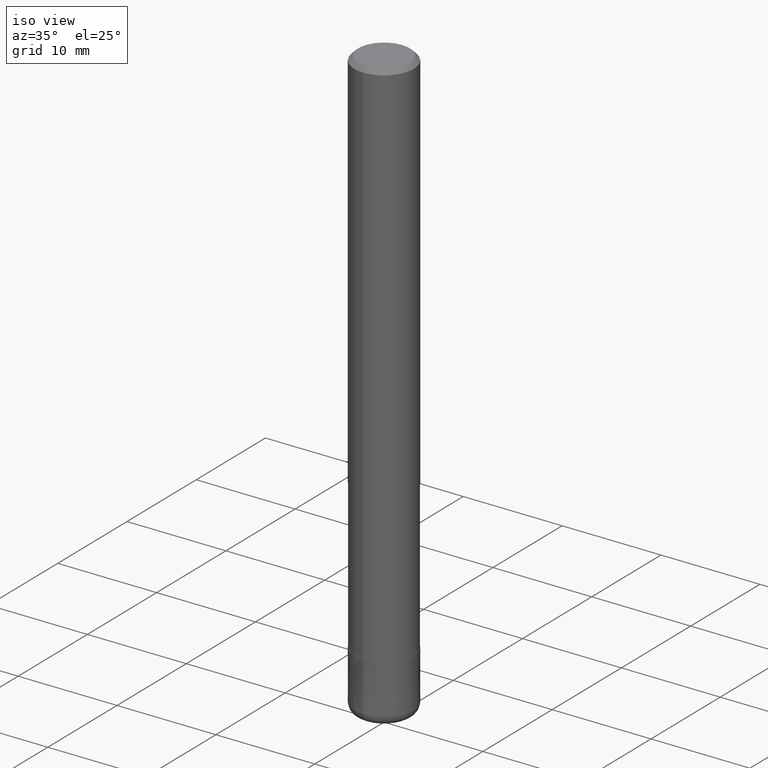
[diagram: clean part render]
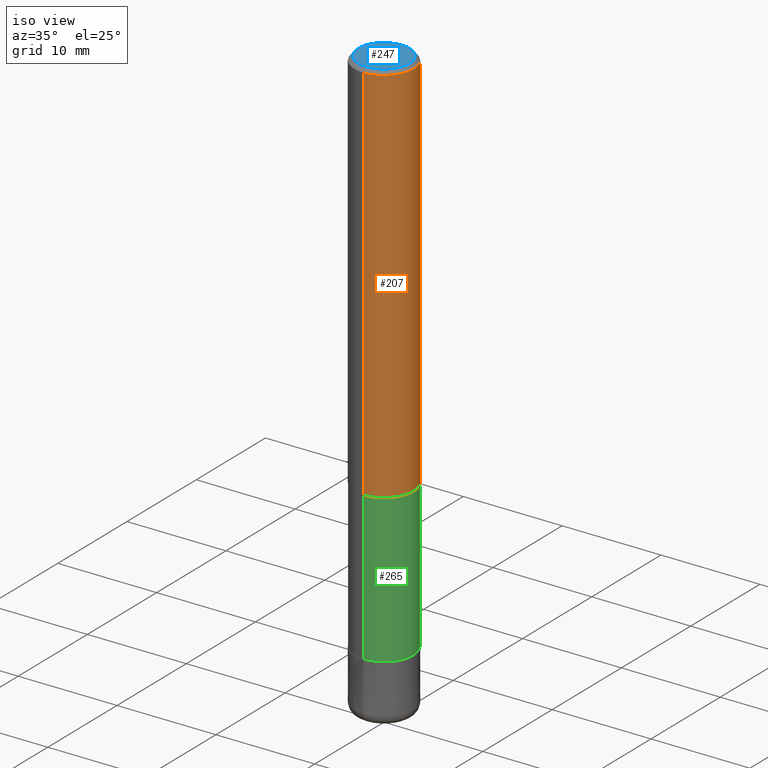
[diagram: same view with three faces highlighted in distinct colors, each labeled with its STEP entity id]
A machine part, iso view with three faces highlighted in distinct colors.
Their STEP definitions:

[orange] entity #207 — the highlighted cylindrical surface (edge-blend (fillet) strip) has radius 3 mm, axis along (-0, -0, 1).
#119=VERTEX_POINT('',#306);
#133=VERTEX_POINT('',#320);
#153=EDGE_CURVE('',#119,#175,#348,.T.);
#175=VERTEX_POINT('',#373);
#177=EDGE_CURVE('',#133,#119,#375,.T.);
#205=EDGE_CURVE('',#271,#175,#407,.T.);
#207=ADVANCED_FACE('',(#409),#410,.T.);
#209=EDGE_CURVE('',#271,#133,#412,.T.);
#271=VERTEX_POINT('',#482);
#306=CARTESIAN_POINT('',(3.67381906146713E-016,-3.0,-39.0));
#320=CARTESIAN_POINT('',(0.0,3.0,-39.0));
#348=LINE('',#560,#561);
#373=CARTESIAN_POINT('',(3.67381906146713E-016,-3.0,-0.399999999999999));
#375=CIRCLE('',#596,3.0);
#407=CIRCLE('',#639,3.0);
#409=FACE_OUTER_BOUND('',#641,.T.);
#410=CYLINDRICAL_SURFACE('',#642,3.0);
#412=LINE('',#645,#646);
#482=CARTESIAN_POINT('',(0.0,3.0,-0.399999999999999));
#560=CARTESIAN_POINT('',(3.67381906146713E-016,-3.0,-19.7));
#561=VECTOR('',#801,1.0);
#596=AXIS2_PLACEMENT_3D('',#834,#835,#836);
#639=AXIS2_PLACEMENT_3D('',#889,#890,#891);
#641=EDGE_LOOP('',(#893,#894,#895,#896));
#642=AXIS2_PLACEMENT_3D('',#897,#898,#899);
#645=CARTESIAN_POINT('',(-3.67381906146713E-016,3.0,-19.7));
#646=VECTOR('',#900,1.0);
#801=DIRECTION('',(-0.0,-0.0,1.0));
#834=CARTESIAN_POINT('',(0.0,0.0,-39.0));
#835=DIRECTION('',(0.0,0.0,-1.0));
#836=DIRECTION('',(0.0,1.0,0.0));
#889=CARTESIAN_POINT('',(0.0,0.0,-0.399999999999999));
#890=DIRECTION('',(0.0,0.0,-1.0));
#891=DIRECTION('',(0.0,1.0,0.0));
#893=ORIENTED_EDGE('',*,*,#209,.F.);
#894=ORIENTED_EDGE('',*,*,#205,.T.);
#895=ORIENTED_EDGE('',*,*,#153,.F.);
#896=ORIENTED_EDGE('',*,*,#177,.F.);
#897=CARTESIAN_POINT('',(0.0,0.0,-19.7));
#898=DIRECTION('',(-0.0,-0.0,1.0));
#899=DIRECTION('',(0.0,1.0,0.0));
#900=DIRECTION('',(0.0,0.0,-1.0));

[blue] entity #247 — the highlighted planar face has unit normal (-0, 0, 1).
#117=EDGE_CURVE('',#257,#263,#304,.T.);
#231=EDGE_CURVE('',#263,#257,#434,.T.);
#247=ADVANCED_FACE('',(#453),#454,.T.);
#257=VERTEX_POINT('',#465);
#263=VERTEX_POINT('',#472);
#304=CIRCLE('',#508,2.6);
#434=CIRCLE('',#673,2.6);
#453=FACE_OUTER_BOUND('',#696,.T.);
#454=PLANE('',#697);
#465=CARTESIAN_POINT('',(0.0,2.6,0.0));
#472=CARTESIAN_POINT('',(3.18397651993818E-016,-2.6,0.0));
#508=AXIS2_PLACEMENT_3D('',#747,#748,#749);
#673=AXIS2_PLACEMENT_3D('',#911,#912,#913);
#696=EDGE_LOOP('',(#944,#945));
#697=AXIS2_PLACEMENT_3D('',#946,#947,#948);
#747=CARTESIAN_POINT('',(0.0,0.0,0.0));
#748=DIRECTION('',(0.0,0.0,-1.0));
#749=DIRECTION('',(0.0,1.0,0.0));
#911=CARTESIAN_POINT('',(0.0,0.0,0.0));
#912=DIRECTION('',(0.0,0.0,-1.0));
#913=DIRECTION('',(0.0,1.0,0.0));
#944=ORIENTED_EDGE('',*,*,#117,.F.);
#945=ORIENTED_EDGE('',*,*,#231,.F.);
#946=CARTESIAN_POINT('',(0.0,1.3,0.0));
#947=DIRECTION('',(-0.0,0.0,1.0));
#948=DIRECTION('',(0.0,-1.0,0.0));

[green] entity #265 — the highlighted cylindrical surface (edge-blend (fillet) strip) has radius 2.975 mm, axis along (-0, -0, 1).
#123=VERTEX_POINT('',#310);
#151=EDGE_CURVE('',#279,#165,#346,.T.);
#165=VERTEX_POINT('',#360);
#183=EDGE_CURVE('',#225,#123,#381,.T.);
#203=EDGE_CURVE('',#123,#279,#405,.T.);
#225=VERTEX_POINT('',#428);
#243=EDGE_CURVE('',#225,#165,#448,.T.);
#265=ADVANCED_FACE('',(#474),#475,.T.);
#279=VERTEX_POINT('',#490);
#310=CARTESIAN_POINT('',(0.0,2.97495,-54.0));
#346=LINE('',#556,#557);
#360=CARTESIAN_POINT('',(3.64314267230388E-016,-2.97495,-39.0));
#381=LINE('',#605,#606);
#405=CIRCLE('',#636,2.97495);
#428=CARTESIAN_POINT('',(0.0,2.97495,-39.0));
#448=CIRCLE('',#691,2.97495);
#474=FACE_OUTER_BOUND('',#720,.T.);
#475=CYLINDRICAL_SURFACE('',#721,2.97495);
#490=CARTESIAN_POINT('',(3.64314267230388E-016,-2.97495,-54.0));
#556=CARTESIAN_POINT('',(3.64314267230388E-016,-2.97495,-46.5));
#557=VECTOR('',#800,1.0);
#605=CARTESIAN_POINT('',(-3.64314267230388E-016,2.97495,-46.5));
#606=VECTOR('',#843,1.0);
#636=AXIS2_PLACEMENT_3D('',#886,#887,#888);
#691=AXIS2_PLACEMENT_3D('',#932,#933,#934);
#720=EDGE_LOOP('',(#970,#971,#972,#973));
#721=AXIS2_PLACEMENT_3D('',#974,#975,#976);
#800=DIRECTION('',(-0.0,-0.0,1.0));
#843=DIRECTION('',(0.0,0.0,-1.0));
#886=CARTESIAN_POINT('',(0.0,0.0,-54.0));
#887=DIRECTION('',(0.0,0.0,-1.0));
#888=DIRECTION('',(0.0,1.0,0.0));
#932=CARTESIAN_POINT('',(0.0,0.0,-39.0));
#933=DIRECTION('',(0.0,0.0,-1.0));
#934=DIRECTION('',(0.0,1.0,0.0));
#970=ORIENTED_EDGE('',*,*,#183,.F.);
#971=ORIENTED_EDGE('',*,*,#243,.T.);
#972=ORIENTED_EDGE('',*,*,#151,.F.);
#973=ORIENTED_EDGE('',*,*,#203,.F.);
#974=CARTESIAN_POINT('',(0.0,0.0,-46.5));
#975=DIRECTION('',(-0.0,-0.0,1.0));
#976=DIRECTION('',(0.0,1.0,0.0));